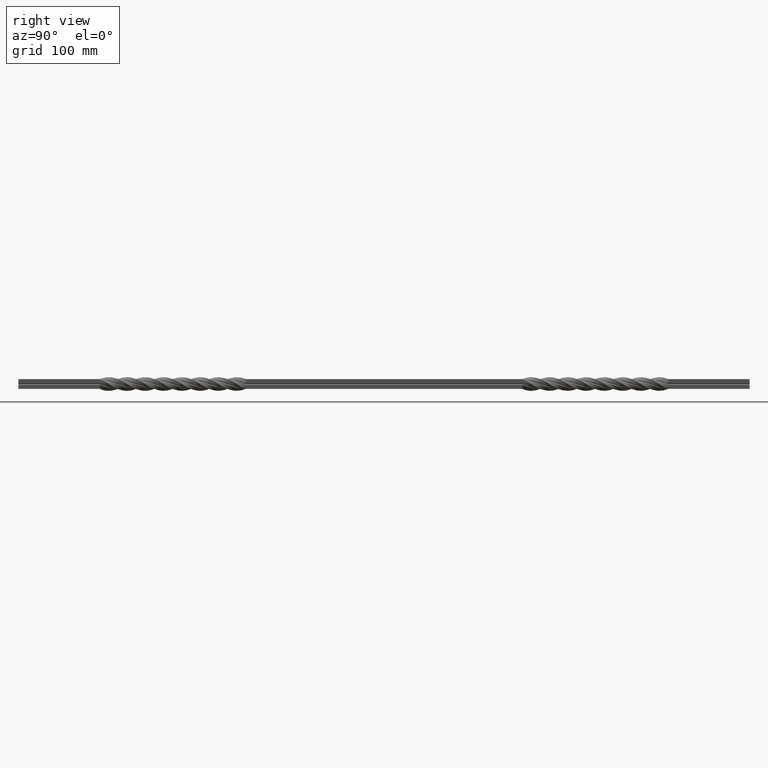
[diagram: clean part render]
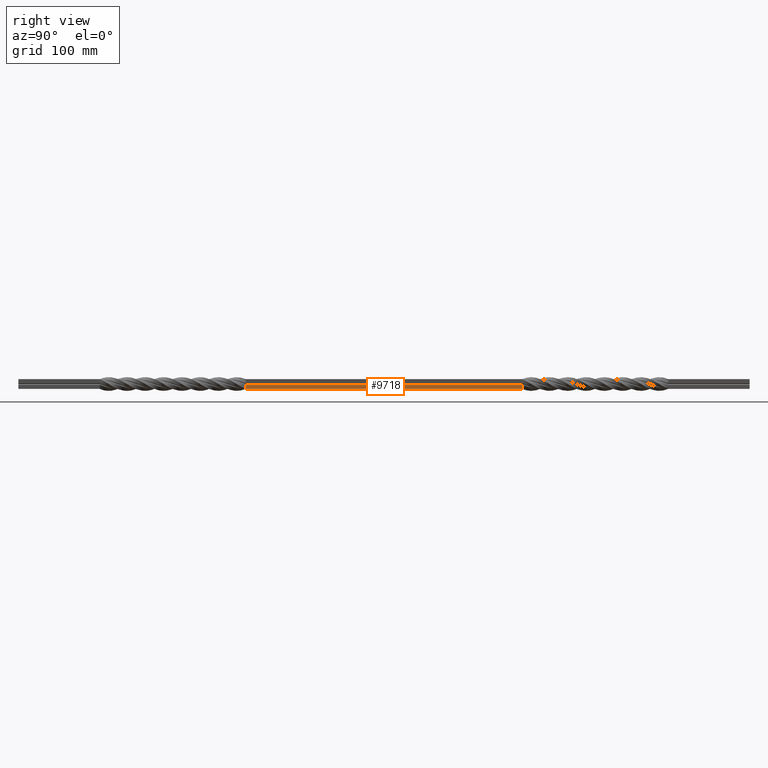
[diagram: same view with one face highlighted and labeled with its STEP entity id]
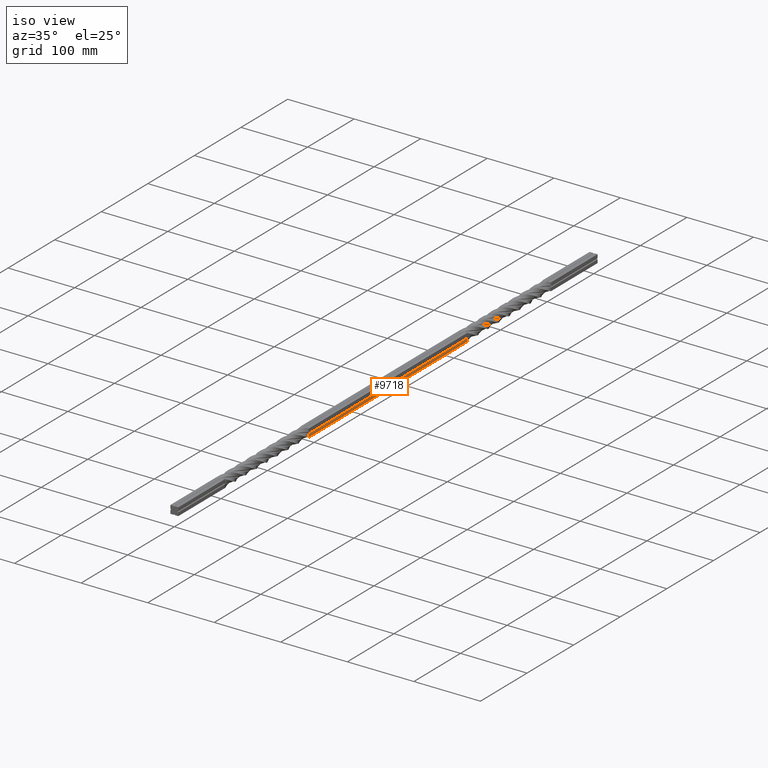
[diagram: same view with one face highlighted and labeled with its STEP entity id]
A machine part, right view. The second image highlights one B-rep face of the part: STEP entity #9718.
A second angle (iso view) of the same face is appended — the face is thin or edge-on in the first view.
In plain terms, the highlighted planar face has unit normal (1, 0, 0).
Its self-contained STEP definition (entity closure, byte-faithful):
#923 = LINE ( 'NONE', #11014, #14245 ) ;
#1107 = ORIENTED_EDGE ( 'NONE', *, *, #7610, .T. ) ;
#1256 = VERTEX_POINT ( 'NONE', #12425 ) ;
#1533 = ORIENTED_EDGE ( 'NONE', *, *, #17431, .F. ) ;
#2305 = CARTESIAN_POINT ( 'NONE',  ( 6.000000019066807688, 900.0000000000000000, -5.999999980931939092 ) ) ;
#3236 = DIRECTION ( 'NONE',  ( -3.178028645457914053E-09, 1.273021086125708730E-16, 1.000000000000000000 ) ) ;
#4668 = VECTOR ( 'NONE', #11397, 1000.000000000000000 ) ;
#4679 = CARTESIAN_POINT ( 'NONE',  ( 6.000000019066807688, 900.0000000000000000, -5.999999980931939092 ) ) ;
#4876 = DIRECTION ( 'NONE',  ( 1.000000000000000000, 1.523916004417311097E-15, 3.178028645457914053E-09 ) ) ;
#4919 = EDGE_CURVE ( 'NONE', #7200, #9412, #7341, .T. ) ;
#5883 = DIRECTION ( 'NONE',  ( -3.178028645458279253E-09, 4.795160015589895940E-07, 0.9999999999998850919 ) ) ;
#7200 = VERTEX_POINT ( 'NONE', #10074 ) ;
#7341 = LINE ( 'NONE', #19560, #14054 ) ;
#7610 = EDGE_CURVE ( 'NONE', #9412, #17051, #14959, .T. ) ;
#9412 = VERTEX_POINT ( 'NONE', #17569 ) ;
#9718 = ADVANCED_FACE ( 'NONE', ( #14288 ), #10670, .T. ) ;
#10074 = CARTESIAN_POINT ( 'NONE',  ( 5.999999997991561251, 619.9999968861509387, -6.000000002011181444 ) ) ;
#10268 = CARTESIAN_POINT ( 'NONE',  ( 6.000000003177609287, 280.0000000000000000, -0.9999999809318484978 ) ) ;
#10670 = PLANE ( 'NONE',  #11367 ) ;
#11014 = CARTESIAN_POINT ( 'NONE',  ( 6.000000019067751822, 280.0000000000000000, -5.999999980931860044 ) ) ;
#11367 = AXIS2_PLACEMENT_3D ( 'NONE', #4679, #4876, #18321 ) ;
#11397 = DIRECTION ( 'NONE',  ( 1.523916004417311294E-15, -1.000000000000000000, 1.279431223420654558E-16 ) ) ;
#12425 = CARTESIAN_POINT ( 'NONE',  ( 6.000000019067751822, 280.0000000000000000, -5.999999980931860044 ) ) ;
#12719 = EDGE_LOOP ( 'NONE', ( #1533, #16064, #1107, #16059 ) ) ;
#13281 = DIRECTION ( 'NONE',  ( 1.523916004417311294E-15, -1.000000000000000000, 1.279431223420654558E-16 ) ) ;
#13347 = CARTESIAN_POINT ( 'NONE',  ( 6.000000003176665153, 900.0000000000000000, -0.9999999809319273236 ) ) ;
#13537 = VECTOR ( 'NONE', #13281, 1000.000000000000000 ) ;
#13975 = LINE ( 'NONE', #2305, #4668 ) ;
#14054 = VECTOR ( 'NONE', #5883, 999.9999999999998863 ) ;
#14245 = VECTOR ( 'NONE', #3236, 1000.000000000000000 ) ;
#14288 = FACE_OUTER_BOUND ( 'NONE', #12719, .T. ) ;
#14959 = LINE ( 'NONE', #13347, #13537 ) ;
#15898 = EDGE_CURVE ( 'NONE', #1256, #17051, #923, .T. ) ;
#16059 = ORIENTED_EDGE ( 'NONE', *, *, #15898, .F. ) ;
#16064 = ORIENTED_EDGE ( 'NONE', *, *, #4919, .T. ) ;
#17051 = VERTEX_POINT ( 'NONE', #10268 ) ;
#17431 = EDGE_CURVE ( 'NONE', #7200, #1256, #13975, .T. ) ;
#17569 = CARTESIAN_POINT ( 'NONE',  ( 6.000000038601923436, 619.9999987255916949, -0.9999997682107316654 ) ) ;
#18321 = DIRECTION ( 'NONE',  ( 3.178028645457914053E-09, -1.279431223420667870E-16, -1.000000000000000000 ) ) ;
#19560 = CARTESIAN_POINT ( 'NONE',  ( 6.000000019066807688, 619.9999968358920341, -5.999865716449985342 ) ) ;